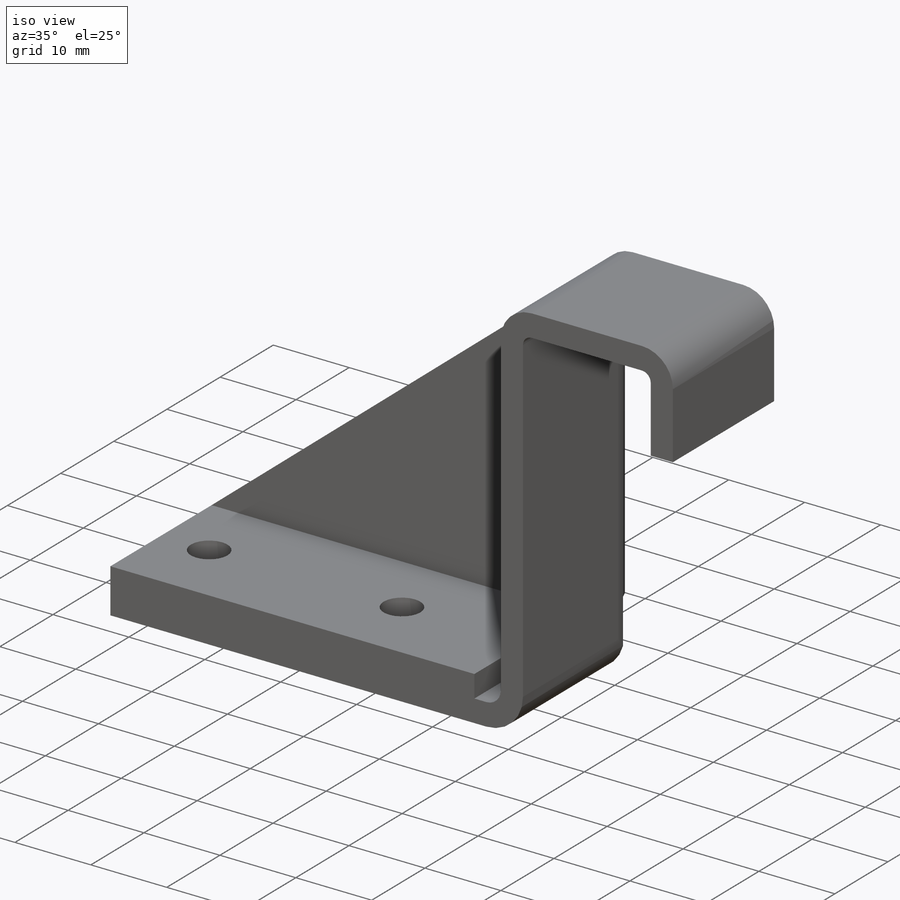
[diagram: iso view]
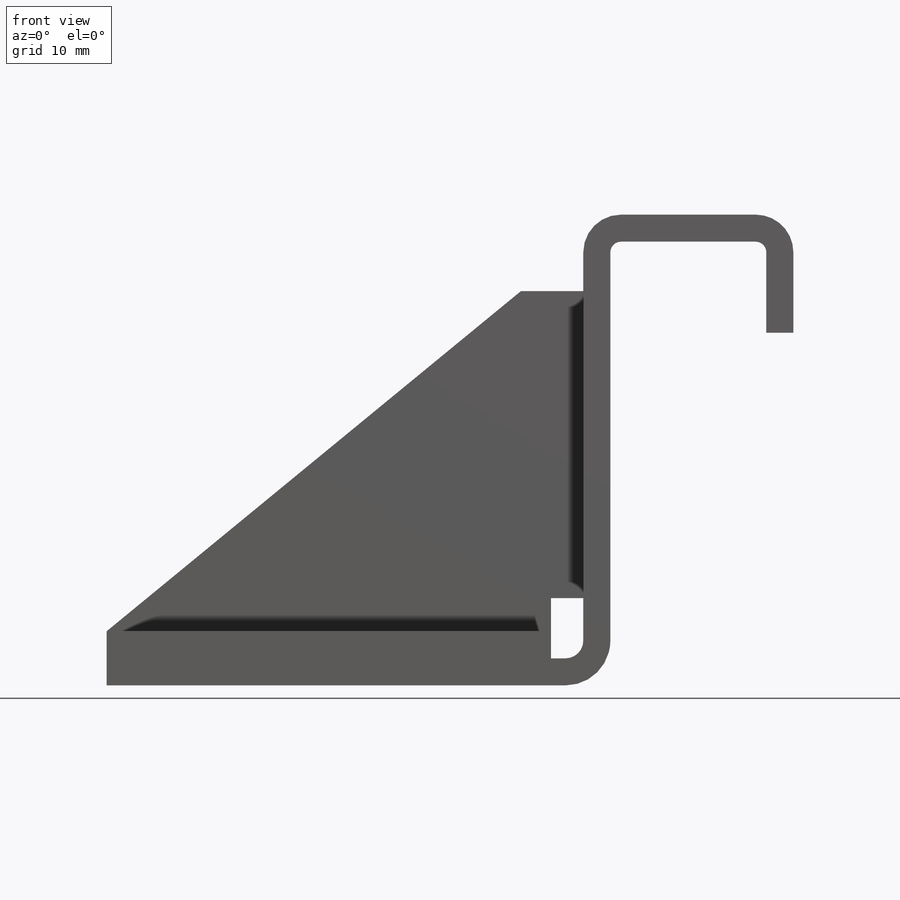
[diagram: front view]
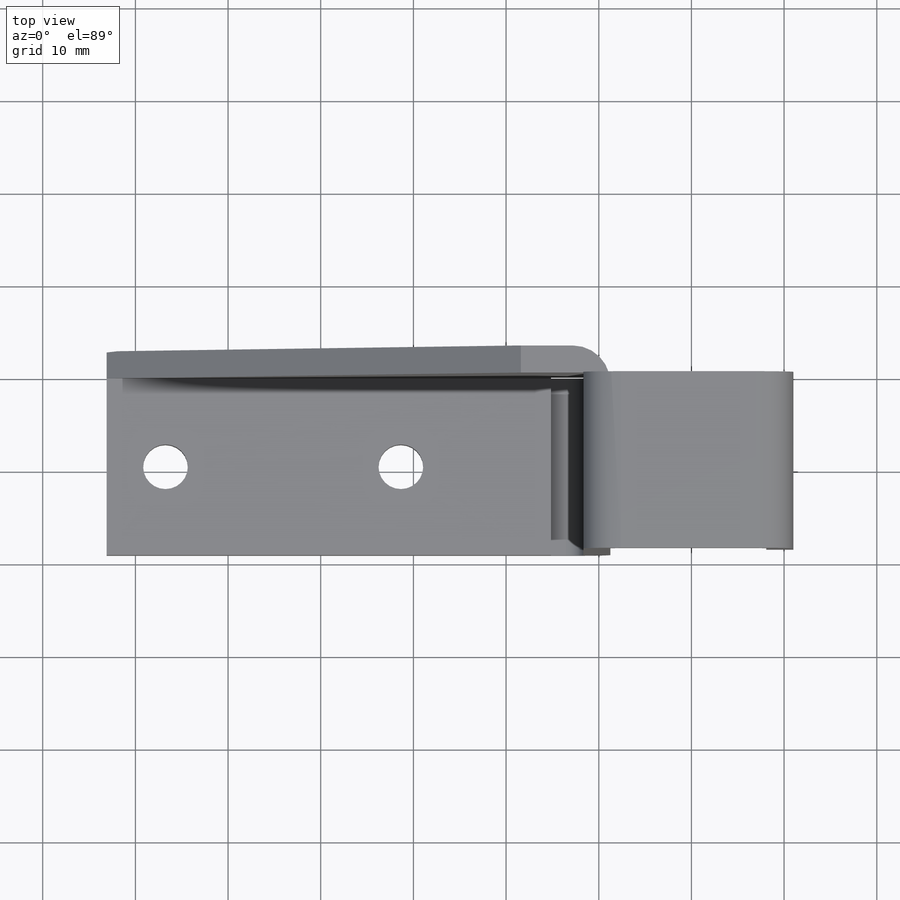
[diagram: top view]
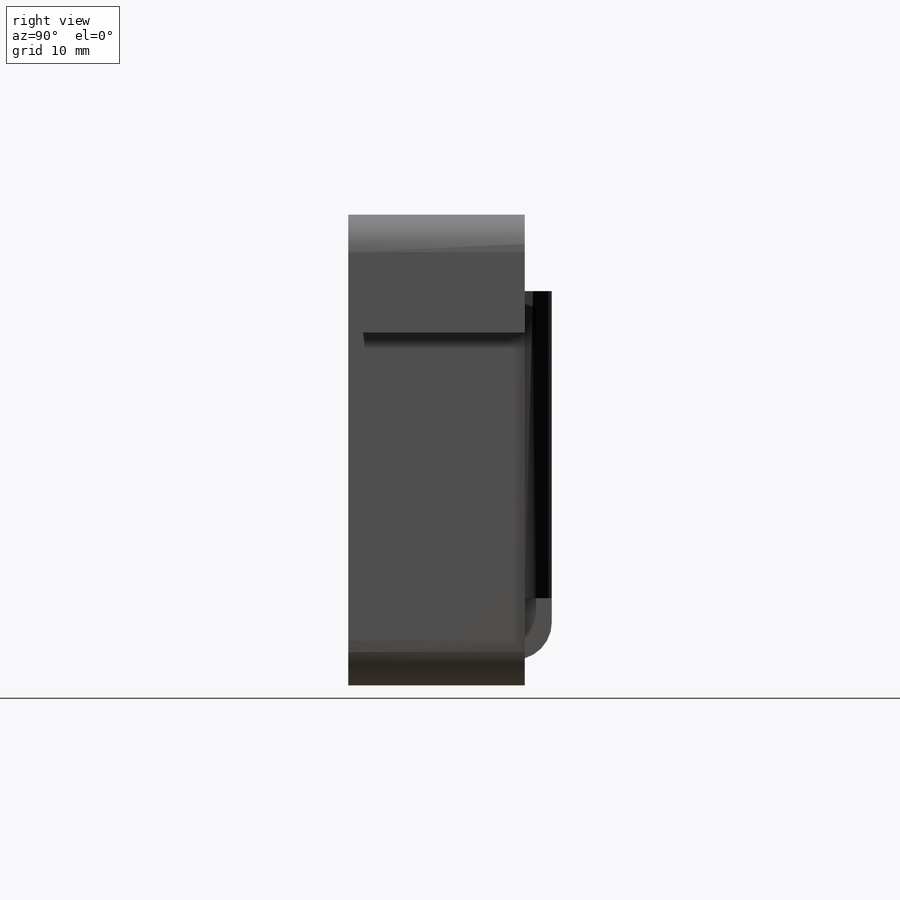
[diagram: right view]
SOLIDWORKS PART (.sldprt)
format: sldprt  version: not decoded by parser v0  size: 167,936 bytes
history: native  units: mm
features: sketch x5, extrude x3, fillet x2, material x1, cut_extrude x1 (+15 scaffold rows collapsed)
feature tree (27):
  scaffold x15  (default folders/planes/origin — collapsed)
  material  "Material <not specified>"
  sketch  "Sketch1"
  sketch  "Sketch2"
  extrude  "Extrude1"  Depth=19.05mm
  sketch  "Sketch3"
  extrude  "Extrude4"  Depth=2.921mm
  sketch  "Sketch5"
  extrude  "Extrude5"  Depth=19.05mm
  fillet  "Fillet1"  Radius=4.064mm
  fillet  "Fillet2"  Radius=4.064mm
  sketch  "Sketch6"  dims[D1=25.4mm]
  cut_extrude  "Cut-Extrude1"  [1 undecoded]
decode coverage: 6 of 11 modeling features carry decoded parameters
note: 1 parameter value undecoded
note: suppression state not decoded; provenance and decode notes live in map.json
